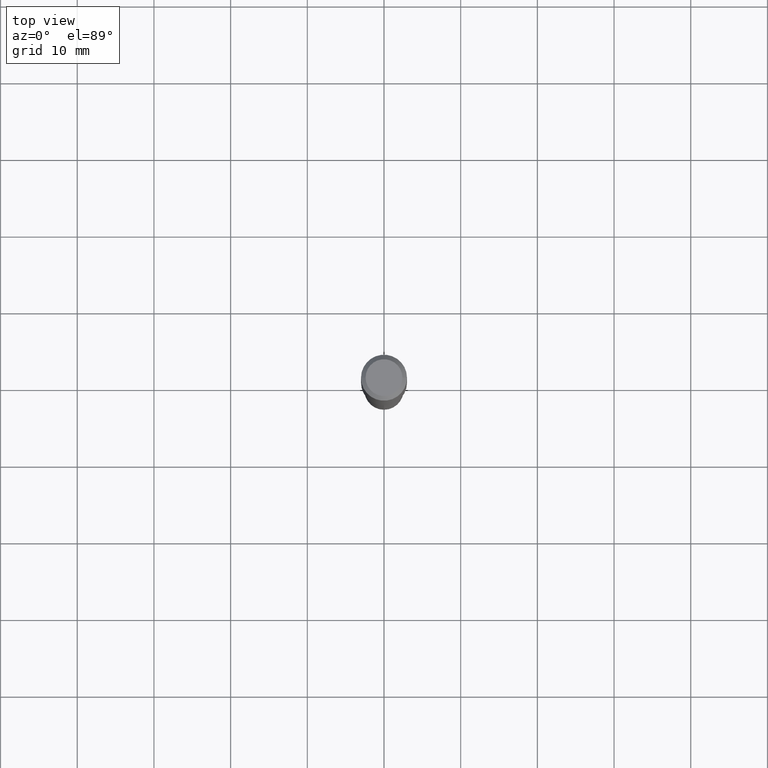
[diagram: clean part render]
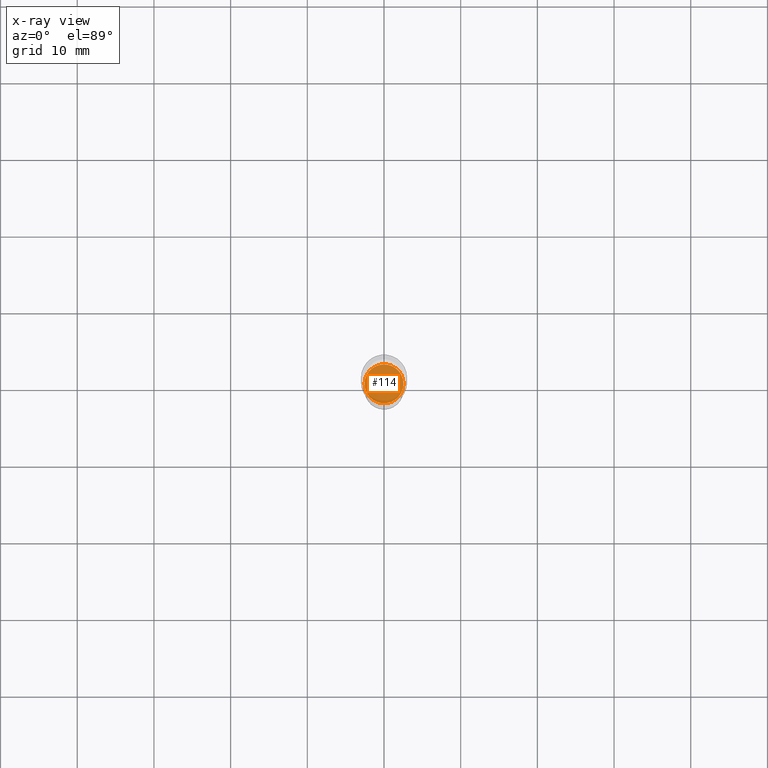
[diagram: x-ray — body ghosted, one internal face saturated and labeled with its STEP entity id]
A machine part, top view, then the same camera in x-ray: the body is ghosted and one INTERNAL B-rep face — a face not visible from any outside direction — is saturated and labeled: STEP entity #114.
In plain terms, the highlighted planar face has unit normal (-0, 0, 1).
Its self-contained STEP definition (entity closure, byte-faithful):
#2 = AXIS2_PLACEMENT_3D ( 'NONE', #126, #92, #237 ) ;
#11 = AXIS2_PLACEMENT_3D ( 'NONE', #478, #70, #135 ) ;
#68 = VERTEX_POINT ( 'NONE', #473 ) ;
#70 = DIRECTION ( 'NONE',  ( -2.445468806185136597E-29, 3.491481338843145583E-15, 1.000000000000000000 ) ) ;
#73 = VERTEX_POINT ( 'NONE', #279 ) ;
#86 = ORIENTED_EDGE ( 'NONE', *, *, #336, .F. ) ;
#89 = AXIS2_PLACEMENT_3D ( 'NONE', #173, #298, #325 ) ;
#92 = DIRECTION ( 'NONE',  ( -2.438088387897960049E-29, 3.491481338843145188E-15, 1.000000000000000000 ) ) ;
#114 = ADVANCED_FACE ( 'NONE', ( #283 ), #430, .F. ) ;
#126 = CARTESIAN_POINT ( 'NONE',  ( 9.916663666885805899E-30, -1.152070866847078647E-14, -1.850400000000000489 ) ) ;
#135 = DIRECTION ( 'NONE',  ( 1.000000000000000000, -6.982962677686267499E-15, 0.000000000000000000 ) ) ;
#146 = EDGE_LOOP ( 'NONE', ( #383, #86 ) ) ;
#173 = CARTESIAN_POINT ( 'NONE',  ( 4.525095478964977954E-29, -6.460637069395358365E-15, -1.850400000000000489 ) ) ;
#177 = CIRCLE ( 'NONE', #89, 0.09990000000000000269 ) ;
#237 = DIRECTION ( 'NONE',  ( 1.000000000000000000, -6.982962677686265922E-15, 4.876176775795935793E-29 ) ) ;
#278 = CIRCLE ( 'NONE', #11, 0.09990000000000000269 ) ;
#279 = CARTESIAN_POINT ( 'NONE',  ( 0.09990000000000000269, -7.158235040896217223E-15, -1.850400000000000489 ) ) ;
#283 = FACE_OUTER_BOUND ( 'NONE', #146, .T. ) ;
#298 = DIRECTION ( 'NONE',  ( -2.445468806185136597E-29, 3.491481338843145583E-15, 1.000000000000000000 ) ) ;
#315 = EDGE_CURVE ( 'NONE', #73, #68, #177, .T. ) ;
#325 = DIRECTION ( 'NONE',  ( 1.000000000000000000, -6.982962677686267499E-15, 0.000000000000000000 ) ) ;
#336 = EDGE_CURVE ( 'NONE', #68, #73, #278, .T. ) ;
#383 = ORIENTED_EDGE ( 'NONE', *, *, #315, .F. ) ;
#430 = PLANE ( 'NONE',  #2 ) ;
#473 = CARTESIAN_POINT ( 'NONE',  ( -0.09990000000000000269, -5.748155649196907158E-15, -1.850400000000000489 ) ) ;
#478 = CARTESIAN_POINT ( 'NONE',  ( 4.525095478964977954E-29, -6.460637069395358365E-15, -1.850400000000000489 ) ) ;